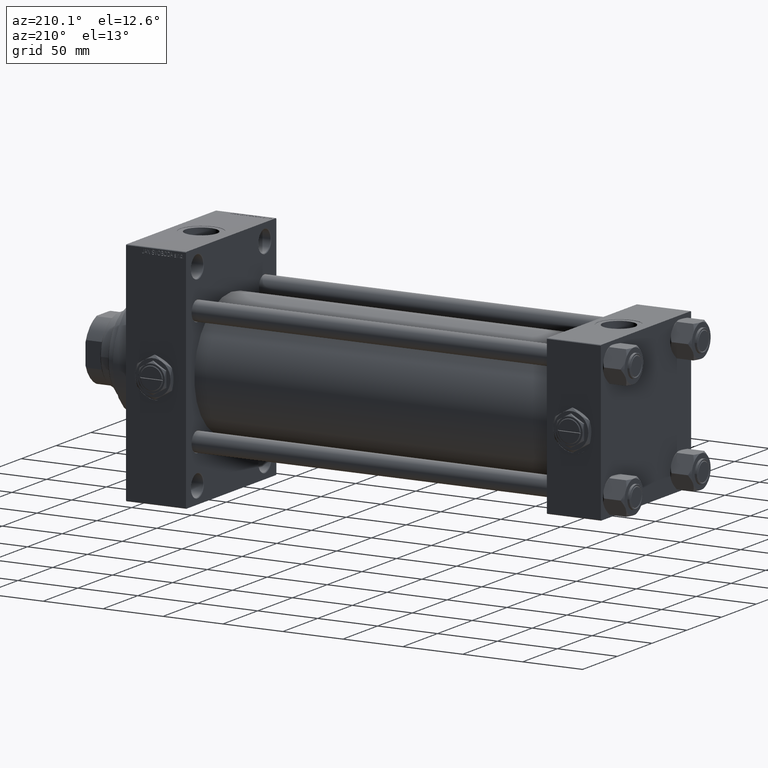
[diagram: clean part render]
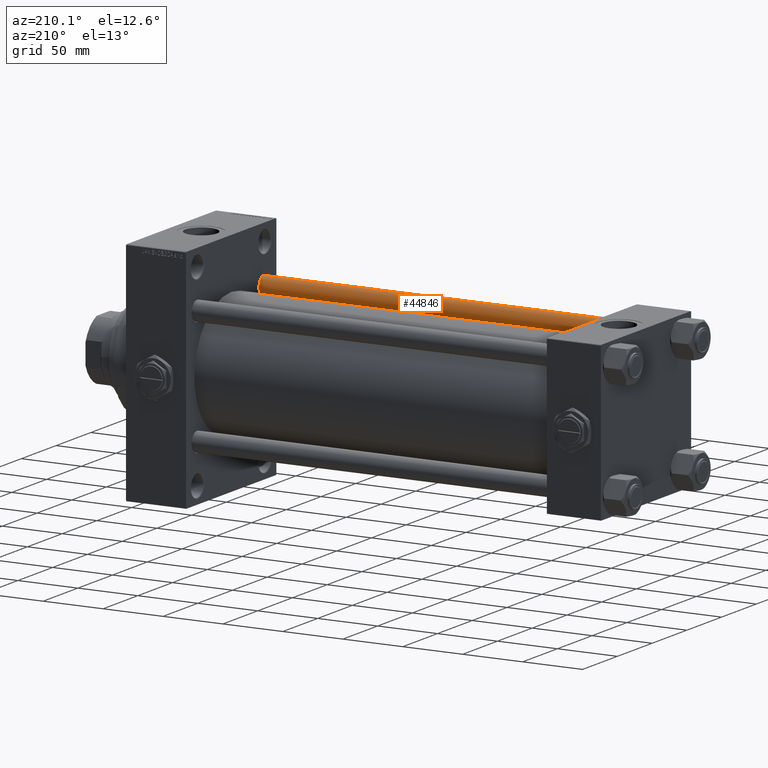
[diagram: same view with one face highlighted and labeled with its STEP entity id]
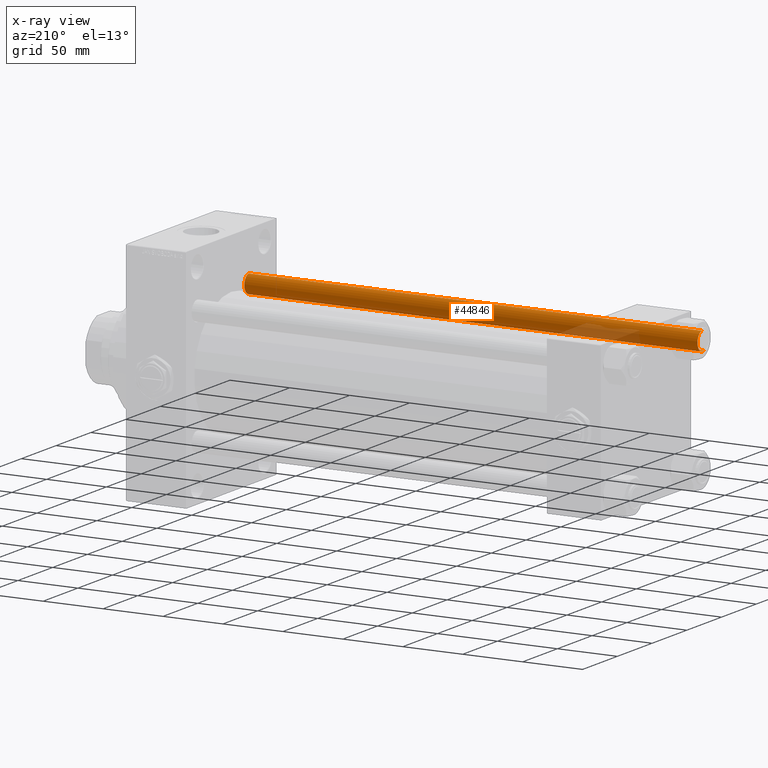
[diagram: x-ray of the same camera — body ghosted, the highlighted face saturated]
A machine part, auxiliary view. The second image highlights one B-rep face of the part: STEP entity #44846.
The next image is the same camera in x-ray: the body ghosted, the highlighted face saturated — about 10% of this face is hidden behind the body in this view.
In plain terms, the highlighted cylindrical surface (edge-blend (fillet) strip) has radius 8 mm, axis along (1, 0, 0).
Its self-contained STEP definition (entity closure, byte-faithful):
#1501 = ORIENTED_EDGE ( 'NONE', *, *, #3882, .T. ) ;
#3882 = EDGE_CURVE ( 'NONE', #15714, #15536, #28089, .T. ) ;
#8811 = DIRECTION ( 'NONE',  ( 1.000000000000000000, 0.000000000000000000, 0.000000000000000000 ) ) ;
#13014 = CARTESIAN_POINT ( 'NONE',  ( -8.000000000000000000, 0.000000000000000000, 378.4999999999999432 ) ) ;
#13062 = DIRECTION ( 'NONE',  ( -0.000000000000000000, -0.000000000000000000, 1.000000000000000000 ) ) ;
#13870 = DIRECTION ( 'NONE',  ( -0.000000000000000000, -0.000000000000000000, -1.000000000000000000 ) ) ;
#14220 = CARTESIAN_POINT ( 'NONE',  ( 0.000000000000000000, 0.000000000000000000, 379.0000000000000000 ) ) ;
#15536 = VERTEX_POINT ( 'NONE', #21175 ) ;
#15595 = EDGE_CURVE ( 'NONE', #35302, #28977, #32343, .T. ) ;
#15714 = VERTEX_POINT ( 'NONE', #49631 ) ;
#16420 = EDGE_CURVE ( 'NONE', #28977, #15714, #30572, .T. ) ;
#18990 = DIRECTION ( 'NONE',  ( -0.000000000000000000, -0.000000000000000000, -1.000000000000000000 ) ) ;
#21175 = CARTESIAN_POINT ( 'NONE',  ( 8.000000000000000000, 9.797174393178825657E-16, 0.4999999999998894218 ) ) ;
#21192 = LINE ( 'NONE', #25488, #22249 ) ;
#22249 = VECTOR ( 'NONE', #13870, 1000.000000000000000 ) ;
#24830 = DIRECTION ( 'NONE',  ( -1.000000000000000000, 0.000000000000000000, 0.000000000000000000 ) ) ;
#25293 = ORIENTED_EDGE ( 'NONE', *, *, #15595, .T. ) ;
#25488 = CARTESIAN_POINT ( 'NONE',  ( 8.000000000000000000, 9.797174393178825657E-16, 379.0000000000000000 ) ) ;
#26408 = ORIENTED_EDGE ( 'NONE', *, *, #16420, .T. ) ;
#27457 = EDGE_CURVE ( 'NONE', #35302, #15536, #21192, .T. ) ;
#27967 = CARTESIAN_POINT ( 'NONE',  ( 0.000000000000000000, 0.000000000000000000, 378.4999999999999432 ) ) ;
#28089 = CIRCLE ( 'NONE', #47441, 8.000000000000000000 ) ;
#28977 = VERTEX_POINT ( 'NONE', #13014 ) ;
#30572 = LINE ( 'NONE', #45983, #48542 ) ;
#31182 = AXIS2_PLACEMENT_3D ( 'NONE', #14220, #48777, #24830 ) ;
#32343 = CIRCLE ( 'NONE', #38800, 8.000000000000000000 ) ;
#35302 = VERTEX_POINT ( 'NONE', #38251 ) ;
#35979 = CARTESIAN_POINT ( 'NONE',  ( 0.000000000000000000, 0.000000000000000000, 0.4999999999998894218 ) ) ;
#38251 = CARTESIAN_POINT ( 'NONE',  ( 8.000000000000000000, 9.797174393178825657E-16, 378.4999999999999432 ) ) ;
#38800 = AXIS2_PLACEMENT_3D ( 'NONE', #27967, #43350, #8811 ) ;
#39762 = DIRECTION ( 'NONE',  ( 1.000000000000000000, 0.000000000000000000, 0.000000000000000000 ) ) ;
#40187 = CYLINDRICAL_SURFACE ( 'NONE', #31182, 8.000000000000000000 ) ;
#40952 = FACE_OUTER_BOUND ( 'NONE', #44067, .T. ) ;
#43350 = DIRECTION ( 'NONE',  ( 0.000000000000000000, 0.000000000000000000, -1.000000000000000000 ) ) ;
#44067 = EDGE_LOOP ( 'NONE', ( #45243, #25293, #26408, #1501 ) ) ;
#44846 = ADVANCED_FACE ( 'NONE', ( #40952 ), #40187, .T. ) ;
#45243 = ORIENTED_EDGE ( 'NONE', *, *, #27457, .F. ) ;
#45983 = CARTESIAN_POINT ( 'NONE',  ( -8.000000000000000000, 0.000000000000000000, 379.0000000000000000 ) ) ;
#47441 = AXIS2_PLACEMENT_3D ( 'NONE', #35979, #13062, #39762 ) ;
#48542 = VECTOR ( 'NONE', #18990, 1000.000000000000000 ) ;
#48777 = DIRECTION ( 'NONE',  ( -0.000000000000000000, -0.000000000000000000, -1.000000000000000000 ) ) ;
#49631 = CARTESIAN_POINT ( 'NONE',  ( -8.000000000000000000, 0.000000000000000000, 0.4999999999998894218 ) ) ;